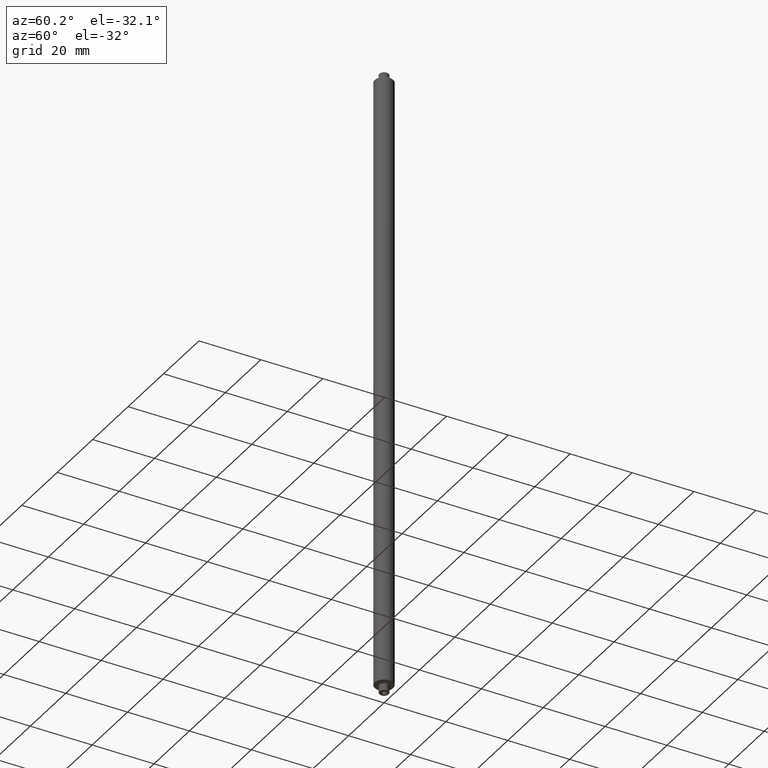
[diagram: clean part render]
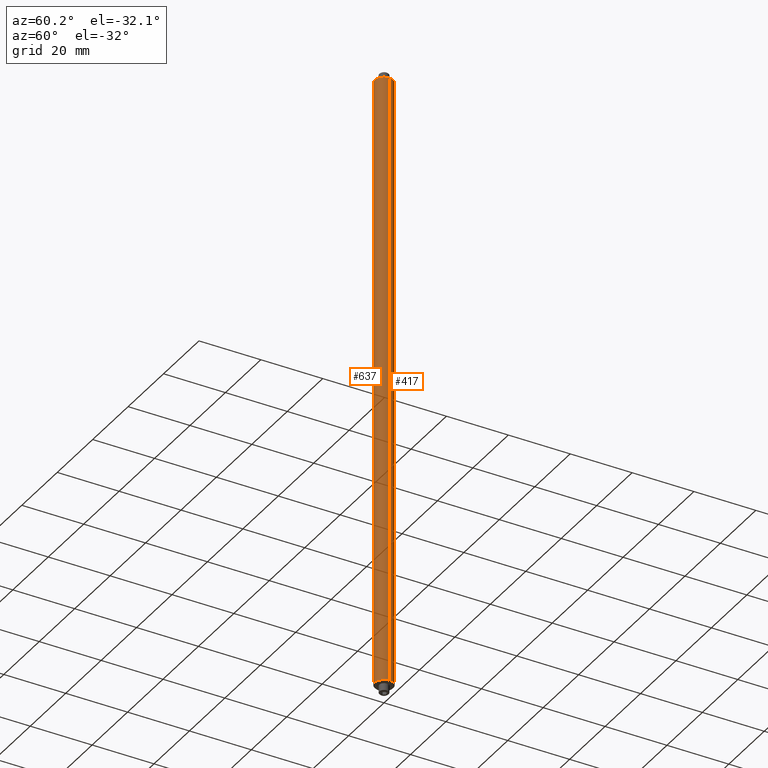
[diagram: same view with one multi-face feature highlighted, each face labeled with its STEP entity id]
A machine part, auxiliary view. The highlighted faces form ONE feature: a constant-radius fillet chain: 2 tangent blend faces with common blend radius 3 mm. The faces share edges in the B-rep.
Their STEP definitions:
[1] entity #417 (Cylinder):
#15 = VERTEX_POINT ( 'NONE', #412 ) ;
#110 = VECTOR ( 'NONE', #1424, 1000.000000000000000 ) ;
#139 = DIRECTION ( 'NONE',  ( -0.000000000000000000, -0.000000000000000000, 1.000000000000000000 ) ) ;
#140 = DIRECTION ( 'NONE',  ( -0.000000000000000000, -0.000000000000000000, -1.000000000000000000 ) ) ;
#222 = CIRCLE ( 'NONE', #1539, 3.000000000000000444 ) ;
#223 = CARTESIAN_POINT ( 'NONE',  ( -3.000000000000000444, 0.000000000000000000, -99.74999999999997158 ) ) ;
#258 = VERTEX_POINT ( 'NONE', #1467 ) ;
#412 = CARTESIAN_POINT ( 'NONE',  ( 3.000000000000000444, 3.673940397442060361E-16, 99.74999999999998579 ) ) ;
#417 = ADVANCED_FACE ( 'NONE', ( #852 ), #1145, .T. ) ;
#508 = ORIENTED_EDGE ( 'NONE', *, *, #1148, .T. ) ;
#612 = VERTEX_POINT ( 'NONE', #223 ) ;
#659 = AXIS2_PLACEMENT_3D ( 'NONE', #1152, #140, #1278 ) ;
#740 = CARTESIAN_POINT ( 'NONE',  ( 0.000000000000000000, 0.000000000000000000, 99.74999999999998579 ) ) ;
#787 = VECTOR ( 'NONE', #918, 1000.000000000000000 ) ;
#851 = CARTESIAN_POINT ( 'NONE',  ( -3.000000000000000444, 0.000000000000000000, 100.0000000000000000 ) ) ;
#852 = FACE_OUTER_BOUND ( 'NONE', #1126, .T. ) ;
#898 = DIRECTION ( 'NONE',  ( 1.000000000000000000, 0.000000000000000000, 0.000000000000000000 ) ) ;
#918 = DIRECTION ( 'NONE',  ( -0.000000000000000000, -0.000000000000000000, -1.000000000000000000 ) ) ;
#1031 = CARTESIAN_POINT ( 'NONE',  ( 0.000000000000000000, 0.000000000000000000, -99.74999999999997158 ) ) ;
#1053 = LINE ( 'NONE', #851, #110 ) ;
#1126 = EDGE_LOOP ( 'NONE', ( #1588, #1352, #508, #1516 ) ) ;
#1133 = EDGE_CURVE ( 'NONE', #258, #15, #222, .T. ) ;
#1145 = CYLINDRICAL_SURFACE ( 'NONE', #659, 3.000000000000000444 ) ;
#1148 = EDGE_CURVE ( 'NONE', #1492, #612, #1299, .T. ) ;
#1152 = CARTESIAN_POINT ( 'NONE',  ( 0.000000000000000000, 0.000000000000000000, 100.0000000000000000 ) ) ;
#1194 = LINE ( 'NONE', #1310, #787 ) ;
#1278 = DIRECTION ( 'NONE',  ( -1.000000000000000000, 0.000000000000000000, 0.000000000000000000 ) ) ;
#1281 = AXIS2_PLACEMENT_3D ( 'NONE', #1031, #139, #898 ) ;
#1299 = CIRCLE ( 'NONE', #1281, 3.000000000000000444 ) ;
#1310 = CARTESIAN_POINT ( 'NONE',  ( 3.000000000000000444, 3.673940397442060361E-16, 100.0000000000000000 ) ) ;
#1352 = ORIENTED_EDGE ( 'NONE', *, *, #1653, .T. ) ;
#1424 = DIRECTION ( 'NONE',  ( -0.000000000000000000, -0.000000000000000000, -1.000000000000000000 ) ) ;
#1467 = CARTESIAN_POINT ( 'NONE',  ( -3.000000000000000444, 0.000000000000000000, 99.74999999999998579 ) ) ;
#1492 = VERTEX_POINT ( 'NONE', #1647 ) ;
#1498 = DIRECTION ( 'NONE',  ( 1.000000000000000000, 0.000000000000000000, 0.000000000000000000 ) ) ;
#1516 = ORIENTED_EDGE ( 'NONE', *, *, #1540, .F. ) ;
#1539 = AXIS2_PLACEMENT_3D ( 'NONE', #740, #1643, #1498 ) ;
#1540 = EDGE_CURVE ( 'NONE', #258, #612, #1053, .T. ) ;
#1588 = ORIENTED_EDGE ( 'NONE', *, *, #1133, .T. ) ;
#1643 = DIRECTION ( 'NONE',  ( 0.000000000000000000, 0.000000000000000000, -1.000000000000000000 ) ) ;
#1647 = CARTESIAN_POINT ( 'NONE',  ( 3.000000000000000444, 3.673940397442060361E-16, -99.74999999999997158 ) ) ;
#1653 = EDGE_CURVE ( 'NONE', #15, #1492, #1194, .T. ) ;
[2] entity #637 (Cylinder):
#15 = VERTEX_POINT ( 'NONE', #412 ) ;
#35 = ORIENTED_EDGE ( 'NONE', *, *, #1527, .T. ) ;
#106 = AXIS2_PLACEMENT_3D ( 'NONE', #1637, #115, #1390 ) ;
#110 = VECTOR ( 'NONE', #1424, 1000.000000000000000 ) ;
#115 = DIRECTION ( 'NONE',  ( 0.000000000000000000, 0.000000000000000000, -1.000000000000000000 ) ) ;
#116 = EDGE_CURVE ( 'NONE', #15, #258, #356, .T. ) ;
#223 = CARTESIAN_POINT ( 'NONE',  ( -3.000000000000000444, 0.000000000000000000, -99.74999999999997158 ) ) ;
#258 = VERTEX_POINT ( 'NONE', #1467 ) ;
#329 = ORIENTED_EDGE ( 'NONE', *, *, #116, .T. ) ;
#356 = CIRCLE ( 'NONE', #106, 3.000000000000000444 ) ;
#363 = EDGE_LOOP ( 'NONE', ( #1245, #329, #1209, #35 ) ) ;
#370 = FACE_OUTER_BOUND ( 'NONE', #363, .T. ) ;
#412 = CARTESIAN_POINT ( 'NONE',  ( 3.000000000000000444, 3.673940397442060361E-16, 99.74999999999998579 ) ) ;
#482 = DIRECTION ( 'NONE',  ( -0.000000000000000000, -0.000000000000000000, 1.000000000000000000 ) ) ;
#592 = DIRECTION ( 'NONE',  ( -1.000000000000000000, 0.000000000000000000, 0.000000000000000000 ) ) ;
#612 = VERTEX_POINT ( 'NONE', #223 ) ;
#637 = ADVANCED_FACE ( 'NONE', ( #370 ), #713, .T. ) ;
#640 = AXIS2_PLACEMENT_3D ( 'NONE', #1249, #482, #1015 ) ;
#713 = CYLINDRICAL_SURFACE ( 'NONE', #1575, 3.000000000000000444 ) ;
#787 = VECTOR ( 'NONE', #918, 1000.000000000000000 ) ;
#851 = CARTESIAN_POINT ( 'NONE',  ( -3.000000000000000444, 0.000000000000000000, 100.0000000000000000 ) ) ;
#918 = DIRECTION ( 'NONE',  ( -0.000000000000000000, -0.000000000000000000, -1.000000000000000000 ) ) ;
#1015 = DIRECTION ( 'NONE',  ( 1.000000000000000000, 0.000000000000000000, 0.000000000000000000 ) ) ;
#1053 = LINE ( 'NONE', #851, #110 ) ;
#1111 = DIRECTION ( 'NONE',  ( -0.000000000000000000, -0.000000000000000000, -1.000000000000000000 ) ) ;
#1194 = LINE ( 'NONE', #1310, #787 ) ;
#1209 = ORIENTED_EDGE ( 'NONE', *, *, #1540, .T. ) ;
#1245 = ORIENTED_EDGE ( 'NONE', *, *, #1653, .F. ) ;
#1249 = CARTESIAN_POINT ( 'NONE',  ( 0.000000000000000000, 0.000000000000000000, -99.74999999999997158 ) ) ;
#1310 = CARTESIAN_POINT ( 'NONE',  ( 3.000000000000000444, 3.673940397442060361E-16, 100.0000000000000000 ) ) ;
#1359 = CARTESIAN_POINT ( 'NONE',  ( 0.000000000000000000, 0.000000000000000000, 100.0000000000000000 ) ) ;
#1375 = CIRCLE ( 'NONE', #640, 3.000000000000000444 ) ;
#1390 = DIRECTION ( 'NONE',  ( 1.000000000000000000, 0.000000000000000000, 0.000000000000000000 ) ) ;
#1424 = DIRECTION ( 'NONE',  ( -0.000000000000000000, -0.000000000000000000, -1.000000000000000000 ) ) ;
#1467 = CARTESIAN_POINT ( 'NONE',  ( -3.000000000000000444, 0.000000000000000000, 99.74999999999998579 ) ) ;
#1492 = VERTEX_POINT ( 'NONE', #1647 ) ;
#1527 = EDGE_CURVE ( 'NONE', #612, #1492, #1375, .T. ) ;
#1540 = EDGE_CURVE ( 'NONE', #258, #612, #1053, .T. ) ;
#1575 = AXIS2_PLACEMENT_3D ( 'NONE', #1359, #1111, #592 ) ;
#1637 = CARTESIAN_POINT ( 'NONE',  ( 0.000000000000000000, 0.000000000000000000, 99.74999999999998579 ) ) ;
#1647 = CARTESIAN_POINT ( 'NONE',  ( 3.000000000000000444, 3.673940397442060361E-16, -99.74999999999997158 ) ) ;
#1653 = EDGE_CURVE ( 'NONE', #15, #1492, #1194, .T. ) ;